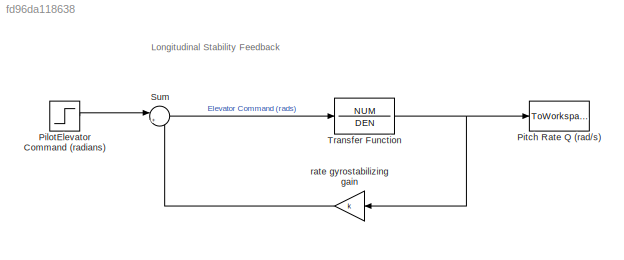
MODEL slx_fd96da118638
KIND model
BLOCK [Step] PilotElevator Command (radians)
  After = 0.03
  SampleTime = 0
BLOCK [ToWorkspace] Pitch Rate Q (rad//s)
  MaxDataPoints = inf
  Ports = [1]
  SampleTime = -1
  SaveFormat = Timeseries
  VariableName = simout
BLOCK [Sum] Sum
  IconShape = round
  InputSameDT = off
  Inputs = |+-
  OutDataTypeStr = Inherit: Inherit via internal rule
  Ports = [2, 1]
  SaturateOnIntegerOverflow = off
BLOCK [TransferFcn] Transfer Function
  Denominator = DEN
  Numerator = NUM
BLOCK [Gain] rate gyrostabilizing gain
  Gain = k
  OutDataTypeStr = Inherit: Inherit via internal rule
  ParamDataTypeStr = Inherit: Inherit via internal rule
  SaturateOnIntegerOverflow = off
ANNOTATION (root): Longitudinal Stability Feedback
LINE PilotElevator Command (radians):1 -> Sum:1
LINE Sum:1 -> Transfer Function:1
NET Transfer Function:1 -> Pitch Rate Q (rad//s):1, rate gyrostabilizing gain:1
LINE rate gyrostabilizing gain:1 -> Sum:2
note: NET lines group one-source signal fan-out (src -> all destinations, sorted); 1:1 wires keep LINE
